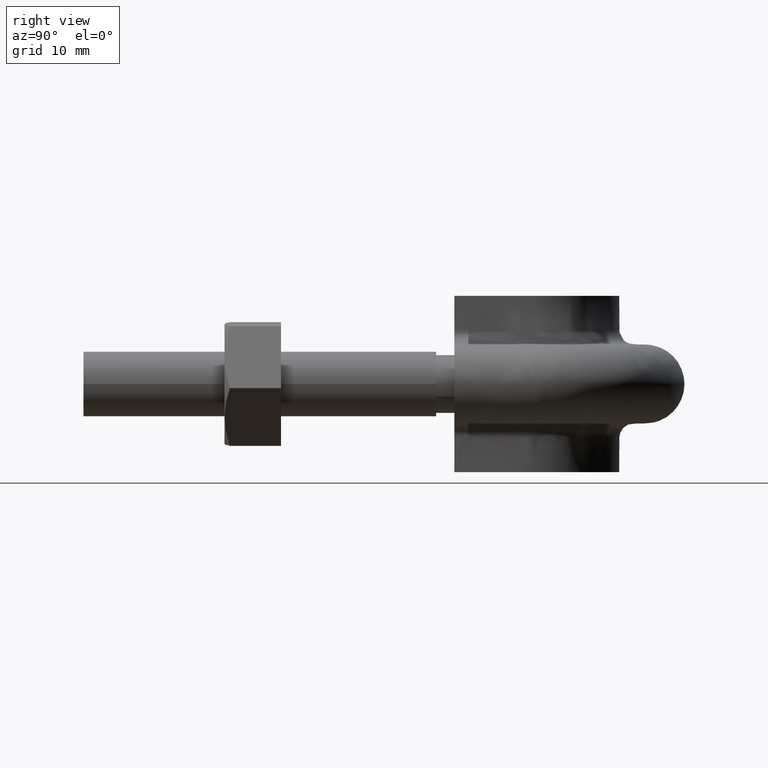
[diagram: clean part render]
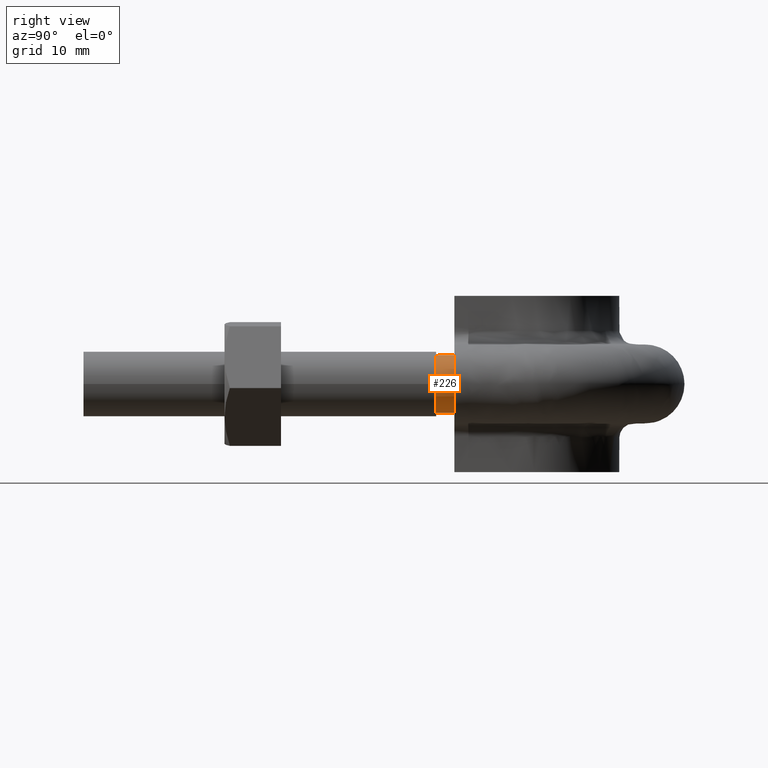
[diagram: same view with one face highlighted and labeled with its STEP entity id]
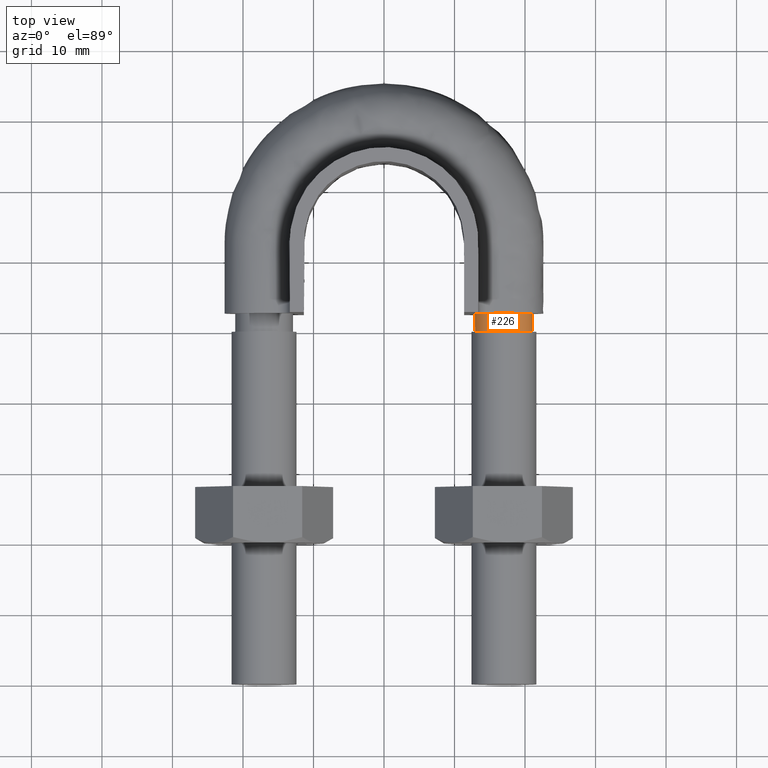
[diagram: same view with one face highlighted and labeled with its STEP entity id]
A machine part, right view. The second image highlights one B-rep face of the part: STEP entity #226.
A second angle (top view) of the same face is appended — the face is thin or edge-on in the first view.
In plain terms, the highlighted cylindrical surface (bore or boss wall) has radius 4.1 mm, axis along (0, 1, -0).
Its self-contained STEP definition (entity closure, byte-faithful):
#226 = ADVANCED_FACE( '', ( #313, #314 ), #315, .T. );
#313 = FACE_OUTER_BOUND( '', #1233, .T. );
#314 = FACE_OUTER_BOUND( '', #1234, .T. );
#315 = CYLINDRICAL_SURFACE( '', #1235, 4.10000000000000 );
#1233 = EDGE_LOOP( '', ( #1607, #1608, #1609, #1610, #1611, #1612, #1613 ) );
#1234 = EDGE_LOOP( '', ( #1614 ) );
#1235 = AXIS2_PLACEMENT_3D( '', #1615, #1616, #1617 );
#1607 = ORIENTED_EDGE( '', *, *, #2101, .T. );
#1608 = ORIENTED_EDGE( '', *, *, #2102, .T. );
#1609 = ORIENTED_EDGE( '', *, *, #2103, .T. );
#1610 = ORIENTED_EDGE( '', *, *, #2104, .T. );
#1611 = ORIENTED_EDGE( '', *, *, #2105, .T. );
#1612 = ORIENTED_EDGE( '', *, *, #2106, .T. );
#1613 = ORIENTED_EDGE( '', *, *, #2107, .T. );
#1614 = ORIENTED_EDGE( '', *, *, #2108, .T. );
#1615 = CARTESIAN_POINT( '', ( 17.0000000000000, 52.6000000000000, -1.01213715143419E-014 ) );
#1616 = DIRECTION( '', ( 2.44921270764475E-016, 1.00000000000000, -3.06151588455594E-016 ) );
#1617 = DIRECTION( '', ( 1.00000000000000, -2.44921270764475E-016, -5.47382212626882E-048 ) );
#2101 = EDGE_CURVE( '', #2263, #2264, #2265, .T. );
#2102 = EDGE_CURVE( '', #2264, #2266, #2267, .T. );
#2103 = EDGE_CURVE( '', #2266, #2268, #2269, .T. );
#2104 = EDGE_CURVE( '', #2268, #2270, #2271, .T. );
#2105 = EDGE_CURVE( '', #2270, #2272, #2273, .T. );
#2106 = EDGE_CURVE( '', #2272, #2274, #2275, .T. );
#2107 = EDGE_CURVE( '', #2274, #2263, #2276, .T. );
#2108 = EDGE_CURVE( '', #2277, #2277, #2278, .F. );
#2263 = VERTEX_POINT( '', #2669 );
#2264 = VERTEX_POINT( '', #2670 );
#2265 = CIRCLE( '', #2671, 4.10000000000000 );
#2266 = VERTEX_POINT( '', #2672 );
#2267 = CIRCLE( '', #2673, 4.10000000000000 );
#2268 = VERTEX_POINT( '', #2674 );
#2269 = CIRCLE( '', #2675, 4.10000000000000 );
#2270 = VERTEX_POINT( '', #2676 );
#2271 = CIRCLE( '', #2677, 4.10000000000000 );
#2272 = VERTEX_POINT( '', #2678 );
#2273 = CIRCLE( '', #2679, 4.10000000000000 );
#2274 = VERTEX_POINT( '', #2680 );
#2275 = CIRCLE( '', #2681, 4.10000000000000 );
#2276 = CIRCLE( '', #2682, 4.10000000000000 );
#2277 = VERTEX_POINT( '', #2683 );
#2278 = CIRCLE( '', #2684, 4.10000000000000 );
#2669 = CARTESIAN_POINT( '', ( 20.6939723583998, 52.6000000000000, 1.77892333038217 ) );
#2670 = CARTESIAN_POINT( '', ( 17.9123358292209, 52.6000000000000, 3.99720443994548 ) );
#2671 = AXIS2_PLACEMENT_3D( '', #3115, #3116, #3117 );
#2672 = CARTESIAN_POINT( '', ( 14.4436918123793, 52.6000000000000, 3.20550907811898 ) );
#2673 = AXIS2_PLACEMENT_3D( '', #3118, #3119, #3120 );
#2674 = CARTESIAN_POINT( '', ( 12.9000000000000, 52.6000000000000, 1.83395593916885E-013 ) );
#2675 = AXIS2_PLACEMENT_3D( '', #3121, #3122, #3123 );
#2676 = CARTESIAN_POINT( '', ( 14.4436918123815, 52.6000000000000, -3.20550907812077 ) );
#2677 = AXIS2_PLACEMENT_3D( '', #3124, #3125, #3126 );
#2678 = CARTESIAN_POINT( '', ( 17.9123358292212, 52.6000000000000, -3.99720443994540 ) );
#2679 = AXIS2_PLACEMENT_3D( '', #3127, #3128, #3129 );
#2680 = CARTESIAN_POINT( '', ( 20.6939723584000, 52.6000000000000, -1.77892333038189 ) );
#2681 = AXIS2_PLACEMENT_3D( '', #3130, #3131, #3132 );
#2682 = AXIS2_PLACEMENT_3D( '', #3133, #3134, #3135 );
#2683 = CARTESIAN_POINT( '', ( 17.0000000000000, 50.0000000000000, -4.10000000000001 ) );
#2684 = AXIS2_PLACEMENT_3D( '', #3136, #3137, #3138 );
#3115 = CARTESIAN_POINT( '', ( 17.0000000000000, 52.6000000000000, -1.01213715143419E-014 ) );
#3116 = DIRECTION( '', ( -2.44921270764475E-016, -1.00000000000000, 3.06151588455594E-016 ) );
#3117 = DIRECTION( '', ( 1.00000000000000, -2.44921270764475E-016, -5.47382212626882E-048 ) );
#3118 = CARTESIAN_POINT( '', ( 17.0000000000000, 52.6000000000000, -1.01213715143419E-014 ) );
#3119 = DIRECTION( '', ( -2.44921270764475E-016, -1.00000000000000, 3.06151588455594E-016 ) );
#3120 = DIRECTION( '', ( 1.00000000000000, -2.44921270764475E-016, -5.47382212626882E-048 ) );
#3121 = CARTESIAN_POINT( '', ( 17.0000000000000, 52.6000000000000, -1.01213715143419E-014 ) );
#3122 = DIRECTION( '', ( -2.44921270764475E-016, -1.00000000000000, 3.06151588455594E-016 ) );
#3123 = DIRECTION( '', ( 1.00000000000000, -2.44921270764475E-016, -5.47382212626882E-048 ) );
#3124 = CARTESIAN_POINT( '', ( 17.0000000000000, 52.6000000000000, -1.01213715143419E-014 ) );
#3125 = DIRECTION( '', ( -2.44921270764475E-016, -1.00000000000000, 3.06151588455594E-016 ) );
#3126 = DIRECTION( '', ( 1.00000000000000, -2.44921270764475E-016, -5.47382212626882E-048 ) );
#3127 = CARTESIAN_POINT( '', ( 17.0000000000000, 52.6000000000000, -1.01213715143419E-014 ) );
#3128 = DIRECTION( '', ( -2.44921270764475E-016, -1.00000000000000, 3.06151588455594E-016 ) );
#3129 = DIRECTION( '', ( 1.00000000000000, -2.44921270764475E-016, -5.47382212626882E-048 ) );
#3130 = CARTESIAN_POINT( '', ( 17.0000000000000, 52.6000000000000, -1.01213715143419E-014 ) );
#3131 = DIRECTION( '', ( -2.44921270764475E-016, -1.00000000000000, 3.06151588455594E-016 ) );
#3132 = DIRECTION( '', ( 1.00000000000000, -2.44921270764475E-016, -5.47382212626882E-048 ) );
#3133 = CARTESIAN_POINT( '', ( 17.0000000000000, 52.6000000000000, -1.01213715143419E-014 ) );
#3134 = DIRECTION( '', ( -2.44921270764475E-016, -1.00000000000000, 3.06151588455594E-016 ) );
#3135 = DIRECTION( '', ( 1.00000000000000, -2.44921270764475E-016, -5.47382212626882E-048 ) );
#3136 = CARTESIAN_POINT( '', ( 17.0000000000000, 50.0000000000000, -9.32537738435740E-015 ) );
#3137 = DIRECTION( '', ( -2.44921270764475E-016, -1.00000000000000, 3.06151588455594E-016 ) );
#3138 = DIRECTION( '', ( 0.000000000000000, -3.06151588455594E-016, -1.00000000000000 ) );